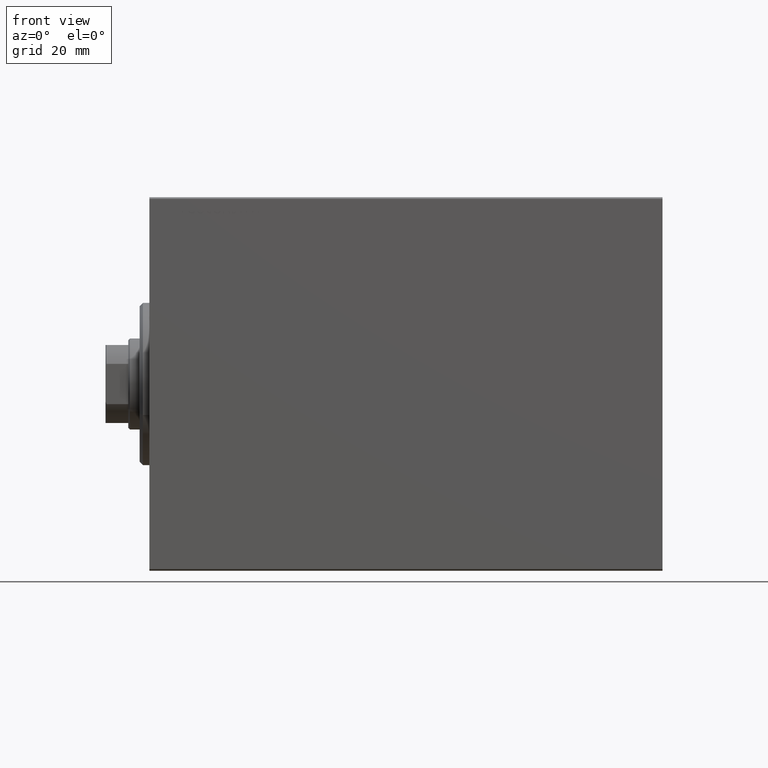
[diagram: clean part render]
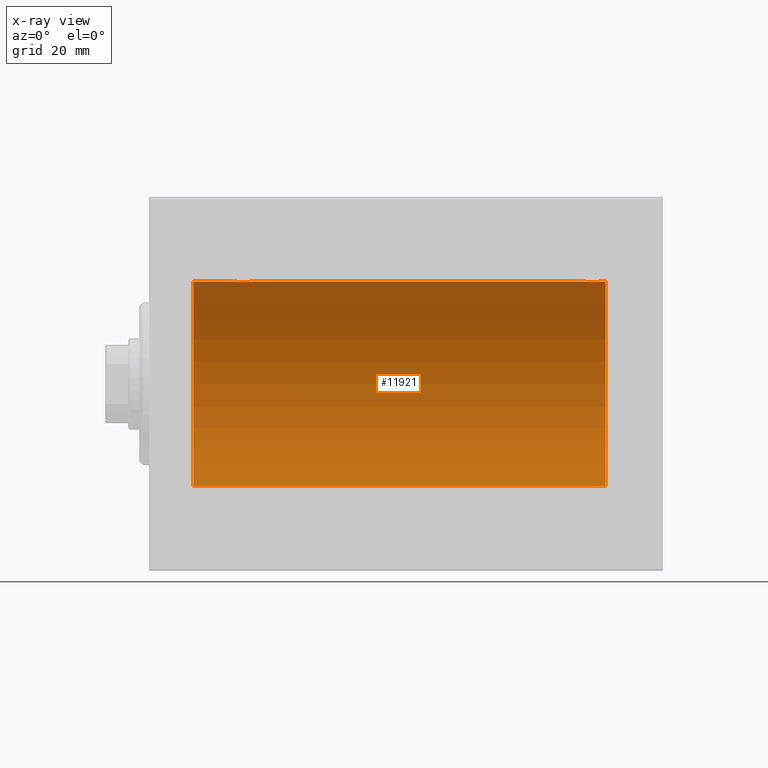
[diagram: x-ray — body ghosted, one internal face saturated and labeled with its STEP entity id]
A machine part, front view, then the same camera in x-ray: the body is ghosted and one INTERNAL B-rep face — a face not visible from any outside direction — is saturated and labeled: STEP entity #11921.
In plain terms, the highlighted cylindrical surface (partial cylindrical patch) has radius 31.5 mm, axis along (-1, -0, -0).
Its self-contained STEP definition (entity closure, byte-faithful):
#74 = CARTESIAN_POINT ( 'NONE',  ( 13.50000000000001243, 0.000000000000000000, 31.50000000000000000 ) ) ;
#395 = LINE ( 'NONE', #20437, #4159 ) ;
#517 = CARTESIAN_POINT ( 'NONE',  ( 135.1711104428413250, 2.696796994793629221, 31.38443855856935016 ) ) ;
#584 = CARTESIAN_POINT ( 'NONE',  ( 26.30368186223717331, 1.329867798385257815, 31.47244047903475206 ) ) ;
#809 = CARTESIAN_POINT ( 'NONE',  ( 29.39162658774828785, 2.980875975682584222, 31.35866508162785848 ) ) ;
#1549 = CYLINDRICAL_SURFACE ( 'NONE', #27044, 31.50000000000000000 ) ;
#1784 = ORIENTED_EDGE ( 'NONE', *, *, #35859, .T. ) ;
#3093 = CARTESIAN_POINT ( 'NONE',  ( 140.5000000000000000, 3.857637417314162689E-15, -31.50000000000000000 ) ) ;
#3650 = CARTESIAN_POINT ( 'NONE',  ( 133.6531399839437313, 0.9664718879465867829, 31.48569500832682522 ) ) ;
#4149 = CARTESIAN_POINT ( 'NONE',  ( 27.01911300874993316, 2.261707786034451662, 31.41901301017587755 ) ) ;
#4159 = VECTOR ( 'NONE', #24011, 1000.000000000000000 ) ;
#4227 = DIRECTION ( 'NONE',  ( -1.000000000000000000, -0.000000000000000000, -0.000000000000000000 ) ) ;
#4595 = CARTESIAN_POINT ( 'NONE',  ( 26.00000000000001066, 0.1958503357044829030, 31.50000000000000711 ) ) ;
#4812 = CARTESIAN_POINT ( 'NONE',  ( 27.17061414532871311, 2.385694485610531324, 31.40971707706042437 ) ) ;
#6066 = EDGE_CURVE ( 'NONE', #35137, #32630, #395, .T. ) ;
#6349 = DIRECTION ( 'NONE',  ( 0.000000000000000000, 0.000000000000000000, 1.000000000000000000 ) ) ;
#6986 = CARTESIAN_POINT ( 'NONE',  ( 136.1064040194889344, 2.980533683278876023, 31.35869737338551388 ) ) ;
#7058 = CARTESIAN_POINT ( 'NONE',  ( 31.60366586440800063, 1.503114925126257218, 31.46454030768326149 ) ) ;
#7214 = CARTESIAN_POINT ( 'NONE',  ( 137.4681616584070696, 2.846197268611676101, 31.37124163027859325 ) ) ;
#7432 = CARTESIAN_POINT ( 'NONE',  ( 139.4042380662973244, 0.7769457993854327338, 31.49100119919085472 ) ) ;
#7642 = CARTESIAN_POINT ( 'NONE',  ( 134.1148804265178853, 1.830131931565270875, 31.44721086712685931 ) ) ;
#7926 = CARTESIAN_POINT ( 'NONE',  ( 26.01962964533704081, 0.3947854228308197988, 31.49811339059600002 ) ) ;
#9321 = CARTESIAN_POINT ( 'NONE',  ( 140.5000000000000000, 0.000000000000000000, 0.000000000000000000 ) ) ;
#10004 = DIRECTION ( 'NONE',  ( -1.000000000000000000, -0.000000000000000000, -0.000000000000000000 ) ) ;
#10177 = CARTESIAN_POINT ( 'NONE',  ( 30.98257411773193937, 2.260013192167872109, 31.41912713670170376 ) ) ;
#10652 = ORIENTED_EDGE ( 'NONE', *, *, #36282, .T. ) ;
#10778 = CARTESIAN_POINT ( 'NONE',  ( 139.5000000000000000, 4.699731104275013306E-15, 31.50000000000000000 ) ) ;
#11130 = CARTESIAN_POINT ( 'NONE',  ( 140.5000000000000000, 0.000000000000000000, 0.000000000000000000 ) ) ;
#11276 = CARTESIAN_POINT ( 'NONE',  ( 30.50363134844576507, 2.603460270751690508, 31.39242096616744249 ) ) ;
#11921 = ADVANCED_FACE ( 'NONE', ( #24719 ), #1549, .F. ) ;
#13449 = CARTESIAN_POINT ( 'NONE',  ( 133.5963926212991453, 0.7794402936641274815, 31.49094275383852093 ) ) ;
#13517 = CARTESIAN_POINT ( 'NONE',  ( 31.98052481897509836, 0.3933386891556653886, 31.49812829325316343 ) ) ;
#14111 = CARTESIAN_POINT ( 'NONE',  ( 136.6968804603335457, 2.999928894260087908, 31.35682424344752306 ) ) ;
#14339 = CARTESIAN_POINT ( 'NONE',  ( 138.0036313484457651, 2.603460270751686512, 31.39242096616744249 ) ) ;
#14401 = CARTESIAN_POINT ( 'NONE',  ( 26.73894082546058826, 1.981627308739907001, 31.43792063499534351 ) ) ;
#14618 = CARTESIAN_POINT ( 'NONE',  ( 29.96816165840708379, 2.846197268611679654, 31.37124163027859325 ) ) ;
#14837 = CARTESIAN_POINT ( 'NONE',  ( 28.03447219557935099, 2.847177118681576413, 31.37115363072576102 ) ) ;
#15022 = DIRECTION ( 'NONE',  ( -1.000000000000000000, -0.000000000000000000, -0.000000000000000000 ) ) ;
#15064 = CARTESIAN_POINT ( 'NONE',  ( 26.61488042651788177, 1.830131931565276426, 31.44721086712685931 ) ) ;
#15144 = DIRECTION ( 'NONE',  ( 0.000000000000000000, 0.000000000000000000, 1.000000000000000000 ) ) ;
#16291 = VECTOR ( 'NONE', #39679, 1000.000000000000000 ) ;
#16788 = CARTESIAN_POINT ( 'NONE',  ( 137.8291560116500136, 2.696575640577643096, 31.38445666459465500 ) ) ;
#16851 = CARTESIAN_POINT ( 'NONE',  ( 32.00000000000000000, -3.906065418435112189E-16, 31.50000000000000000 ) ) ;
#17011 = CARTESIAN_POINT ( 'NONE',  ( 138.7592490337673894, 1.983444873066698699, 31.43779820687993976 ) ) ;
#17106 = CARTESIAN_POINT ( 'NONE',  ( 13.50000000000001243, 3.857637417314162689E-15, -31.50000000000000000 ) ) ;
#17450 = CARTESIAN_POINT ( 'NONE',  ( 139.4805248189751410, 0.3933386891556678866, 31.49812829325316343 ) ) ;
#17668 = CARTESIAN_POINT ( 'NONE',  ( 136.3052925072517212, 3.000070712257527195, 31.35681067529873189 ) ) ;
#17959 = CARTESIAN_POINT ( 'NONE',  ( 26.09639262129909554, 0.7794402936641312563, 31.49094275383852093 ) ) ;
#18183 = CARTESIAN_POINT ( 'NONE',  ( 28.80529250725175316, 3.000070712257528971, 31.35681067529873189 ) ) ;
#18240 = CARTESIAN_POINT ( 'NONE',  ( 139.5000000000000000, 4.699731104275013306E-15, 31.50000000000000000 ) ) ;
#18959 = VERTEX_POINT ( 'NONE', #29092 ) ;
#18984 = EDGE_CURVE ( 'NONE', #36329, #32630, #39301, .T. ) ;
#19392 = ORIENTED_EDGE ( 'NONE', *, *, #39685, .T. ) ;
#19757 = B_SPLINE_CURVE_WITH_KNOTS ( 'NONE', 3,
 ( #10778, #24586, #17450, #7432, #34601, #37518, #24366, #27917, #17011, #27257, #34827, #14339, #16788, #7214, #30826, #31036, #14111, #17668, #6986, #34163, #31263, #517, #38184, #41539, #37304, #27698, #7642, #21233, #23919, #3650, #13449, #23701, #20349, #27469 ),
 .UNSPECIFIED., .F., .F.,
 ( 4, 2, 2, 2, 2, 2, 2, 2, 2, 2, 2, 2, 2, 2, 2, 2, 4 ),
 ( 4.566866065272957060E-18, 0.0005865426616959194209, 0.001173085323391834288, 0.001759627985087749156, 0.002346170646783664240, 0.002932713308479579107, 0.003519255970175493974, 0.004105798631871408408, 0.004692341293567323275, 0.005278883955263238142, 0.005865426616959153010, 0.006451969278655067877, 0.007038511940350982744, 0.007625054602046897612, 0.008211597263742813346, 0.008798139925438727346, 0.009384682587134643081 ),
 .UNSPECIFIED. ) ;
#19813 = LINE ( 'NONE', #36112, #16291 ) ;
#20340 = EDGE_LOOP ( 'NONE', ( #21502, #33376, #19392, #32111, #1784, #10652, #33385, #29844 ) ) ;
#20349 = CARTESIAN_POINT ( 'NONE',  ( 133.5000000000000284, 0.1958503357044812099, 31.50000000000000711 ) ) ;
#20437 = CARTESIAN_POINT ( 'NONE',  ( 140.5000000000000000, 3.857637417314162689E-15, -31.50000000000000000 ) ) ;
#20887 = CIRCLE ( 'NONE', #42986, 31.50000000000000000 ) ;
#21233 = CARTESIAN_POINT ( 'NONE',  ( 133.8976413038693067, 1.505293155307492858, 31.46443304312125022 ) ) ;
#21502 = ORIENTED_EDGE ( 'NONE', *, *, #6066, .F. ) ;
#21743 = CARTESIAN_POINT ( 'NONE',  ( 29.19688046033348883, 2.999928894260092349, 31.35682424344752306 ) ) ;
#23278 = DIRECTION ( 'NONE',  ( -1.000000000000000000, 0.000000000000000000, 0.000000000000000000 ) ) ;
#23701 = CARTESIAN_POINT ( 'NONE',  ( 133.5196296453370621, 0.3947854228308159130, 31.49811339059600002 ) ) ;
#23769 = CARTESIAN_POINT ( 'NONE',  ( 30.83158836027363492, 2.384155341399014638, 31.40983767558391193 ) ) ;
#23856 = EDGE_CURVE ( 'NONE', #18959, #35137, #20887, .T. ) ;
#23919 = CARTESIAN_POINT ( 'NONE',  ( 133.8036818622371698, 1.329867798385254485, 31.47244047903475206 ) ) ;
#24011 = DIRECTION ( 'NONE',  ( -1.000000000000000000, -0.000000000000000000, -0.000000000000000000 ) ) ;
#24238 = CARTESIAN_POINT ( 'NONE',  ( 32.00000000000000000, -3.906065418435112189E-16, 31.50000000000000000 ) ) ;
#24366 = CARTESIAN_POINT ( 'NONE',  ( 139.1036658644080148, 1.503114925126259216, 31.46454030768326149 ) ) ;
#24586 = CARTESIAN_POINT ( 'NONE',  ( 139.4999999999999716, 0.1983379036618949098, 31.50000000000000000 ) ) ;
#24646 = CARTESIAN_POINT ( 'NONE',  ( 27.67111044284136057, 2.696796994793635438, 31.38443855856935016 ) ) ;
#24719 = FACE_OUTER_BOUND ( 'NONE', #20340, .T. ) ;
#24868 = CARTESIAN_POINT ( 'NONE',  ( 26.15313998394373840, 0.9664718879465885593, 31.48569500832682522 ) ) ;
#25045 = LINE ( 'NONE', #38658, #42628 ) ;
#26040 = DIRECTION ( 'NONE',  ( 0.000000000000000000, 0.000000000000000000, 1.000000000000000000 ) ) ;
#26468 = DIRECTION ( 'NONE',  ( -1.000000000000000000, 0.000000000000000000, 0.000000000000000000 ) ) ;
#27044 = AXIS2_PLACEMENT_3D ( 'NONE', #11130, #4227, #15144 ) ;
#27100 = CARTESIAN_POINT ( 'NONE',  ( 31.84649213527308120, 0.9675486622706125361, 31.48566161620712478 ) ) ;
#27257 = CARTESIAN_POINT ( 'NONE',  ( 138.4825741177319287, 2.260013192167864560, 31.41912713670171797 ) ) ;
#27322 = CARTESIAN_POINT ( 'NONE',  ( 31.69583971800497935, 1.330832861354130925, 31.47239936387596160 ) ) ;
#27469 = CARTESIAN_POINT ( 'NONE',  ( 133.5000000000000000, -2.118130973563677748E-23, 31.50000000000000000 ) ) ;
#27698 = CARTESIAN_POINT ( 'NONE',  ( 134.2389408254605883, 1.981627308739888793, 31.43792063499534351 ) ) ;
#27917 = CARTESIAN_POINT ( 'NONE',  ( 138.8859162663947586, 1.829162098167816497, 31.44727042639136627 ) ) ;
#28422 = CARTESIAN_POINT ( 'NONE',  ( 26.00000000000000355, -2.117263226567934635E-23, 31.50000000000000000 ) ) ;
#28511 = VERTEX_POINT ( 'NONE', #34100 ) ;
#29092 = CARTESIAN_POINT ( 'NONE',  ( 140.5000000000000000, 0.000000000000000000, 31.50000000000000000 ) ) ;
#29844 = ORIENTED_EDGE ( 'NONE', *, *, #18984, .T. ) ;
#30275 = CARTESIAN_POINT ( 'NONE',  ( 140.5000000000000000, 0.000000000000000000, 31.50000000000000000 ) ) ;
#30440 = CARTESIAN_POINT ( 'NONE',  ( 31.99999999999998579, 0.1983379036618942437, 31.50000000000000000 ) ) ;
#30826 = CARTESIAN_POINT ( 'NONE',  ( 137.2789700859314621, 2.903824817694223626, 31.36589387714387200 ) ) ;
#30849 = CARTESIAN_POINT ( 'NONE',  ( 13.50000000000001243, 0.000000000000000000, 0.000000000000000000 ) ) ;
#31036 = CARTESIAN_POINT ( 'NONE',  ( 136.8916265877483056, 2.980875975682582002, 31.35866508162785848 ) ) ;
#31263 = CARTESIAN_POINT ( 'NONE',  ( 135.5344721955793545, 2.847177118681571972, 31.37115363072576102 ) ) ;
#31764 = CARTESIAN_POINT ( 'NONE',  ( 27.49557653296076154, 2.602863964129807250, 31.39246667950590464 ) ) ;
#32111 = ORIENTED_EDGE ( 'NONE', *, *, #34504, .T. ) ;
#32630 = VERTEX_POINT ( 'NONE', #17106 ) ;
#32765 = VERTEX_POINT ( 'NONE', #24238 ) ;
#33376 = ORIENTED_EDGE ( 'NONE', *, *, #23856, .F. ) ;
#33385 = ORIENTED_EDGE ( 'NONE', *, *, #35781, .T. ) ;
#33838 = VERTEX_POINT ( 'NONE', #43505 ) ;
#34100 = CARTESIAN_POINT ( 'NONE',  ( 26.00000000000000355, -2.117263226567934635E-23, 31.50000000000000000 ) ) ;
#34163 = CARTESIAN_POINT ( 'NONE',  ( 135.7215416052334263, 2.903876953428264684, 31.36588880666517909 ) ) ;
#34504 = EDGE_CURVE ( 'NONE', #41850, #33838, #19757, .T. ) ;
#34601 = CARTESIAN_POINT ( 'NONE',  ( 139.3464921352730812, 0.9675486622706224171, 31.48566161620712478 ) ) ;
#34827 = CARTESIAN_POINT ( 'NONE',  ( 138.3315883602736562, 2.384155341399010197, 31.40983767558391193 ) ) ;
#35137 = VERTEX_POINT ( 'NONE', #3093 ) ;
#35335 = CARTESIAN_POINT ( 'NONE',  ( 28.60640401948893086, 2.980533683278877355, 31.35869737338551388 ) ) ;
#35728 = AXIS2_PLACEMENT_3D ( 'NONE', #30849, #23278, #6349 ) ;
#35781 = EDGE_CURVE ( 'NONE', #28511, #36329, #19813, .T. ) ;
#35859 = EDGE_CURVE ( 'NONE', #33838, #32765, #40547, .T. ) ;
#36112 = CARTESIAN_POINT ( 'NONE',  ( 140.5000000000000000, 0.000000000000000000, 31.50000000000000000 ) ) ;
#36218 = VECTOR ( 'NONE', #10004, 1000.000000000000000 ) ;
#36282 = EDGE_CURVE ( 'NONE', #32765, #28511, #43075, .T. ) ;
#36329 = VERTEX_POINT ( 'NONE', #74 ) ;
#37304 = CARTESIAN_POINT ( 'NONE',  ( 134.5191130087499118, 2.261707786034434786, 31.41901301017587755 ) ) ;
#37518 = CARTESIAN_POINT ( 'NONE',  ( 139.1958397180049758, 1.330832861354138696, 31.47239936387596160 ) ) ;
#37588 = CARTESIAN_POINT ( 'NONE',  ( 31.90423806629734926, 0.7769457993854306244, 31.49100119919085472 ) ) ;
#38031 = CARTESIAN_POINT ( 'NONE',  ( 30.32915601165003139, 2.696575640577646205, 31.38445666459465500 ) ) ;
#38184 = CARTESIAN_POINT ( 'NONE',  ( 134.9955765329608255, 2.602863964129809915, 31.39246667950590464 ) ) ;
#38478 = CARTESIAN_POINT ( 'NONE',  ( 28.22154160523339783, 2.903876953428266461, 31.36588880666517909 ) ) ;
#38658 = CARTESIAN_POINT ( 'NONE',  ( 140.5000000000000000, 0.000000000000000000, 31.50000000000000000 ) ) ;
#38698 = CARTESIAN_POINT ( 'NONE',  ( 26.39764130386935648, 1.505293155307497965, 31.46443304312125022 ) ) ;
#39301 = CIRCLE ( 'NONE', #35728, 31.50000000000000000 ) ;
#39679 = DIRECTION ( 'NONE',  ( -1.000000000000000000, -0.000000000000000000, -0.000000000000000000 ) ) ;
#39685 = EDGE_CURVE ( 'NONE', #18959, #41850, #25045, .T. ) ;
#40547 = LINE ( 'NONE', #30275, #36218 ) ;
#40715 = CARTESIAN_POINT ( 'NONE',  ( 31.25924903376736097, 1.983444873066708247, 31.43779820687992554 ) ) ;
#40941 = CARTESIAN_POINT ( 'NONE',  ( 31.38591626639475862, 1.829162098167815387, 31.44727042639135917 ) ) ;
#41539 = CARTESIAN_POINT ( 'NONE',  ( 134.6706141453286989, 2.385694485610535320, 31.40971707706042437 ) ) ;
#41816 = CARTESIAN_POINT ( 'NONE',  ( 29.77897008593146211, 2.903824817694226290, 31.36589387714387200 ) ) ;
#41850 = VERTEX_POINT ( 'NONE', #18240 ) ;
#42628 = VECTOR ( 'NONE', #15022, 1000.000000000000000 ) ;
#42986 = AXIS2_PLACEMENT_3D ( 'NONE', #9321, #26468, #26040 ) ;
#43075 = B_SPLINE_CURVE_WITH_KNOTS ( 'NONE', 3,
 ( #16851, #30440, #13517, #37588, #27100, #27322, #7058, #40941, #40715, #10177, #23769, #11276, #38031, #14618, #41816, #809, #21743, #18183, #35335, #38478, #14837, #24646, #31764, #4812, #4149, #14401, #15064, #38698, #584, #24868, #17959, #7926, #4595, #28422 ),
 .UNSPECIFIED., .F., .F.,
 ( 4, 2, 2, 2, 2, 2, 2, 2, 2, 2, 2, 2, 2, 2, 2, 2, 4 ),
 ( 1.524755128789623575E-18, 0.0005865426616959163852, 0.001173085323391831252, 0.001759627985087746120, 0.002346170646783661204, 0.002932713308479576071, 0.003519255970175490938, 0.004105798631871405806, 0.004692341293567320673, 0.005278883955263235540, 0.005865426616959150408, 0.006451969278655065275, 0.007038511940350980142, 0.007625054602046895010, 0.008211597263742809877, 0.008798139925438723877, 0.009384682587134639611 ),
 .UNSPECIFIED. ) ;
#43505 = CARTESIAN_POINT ( 'NONE',  ( 133.5000000000000000, -2.118130973563677748E-23, 31.50000000000000000 ) ) ;